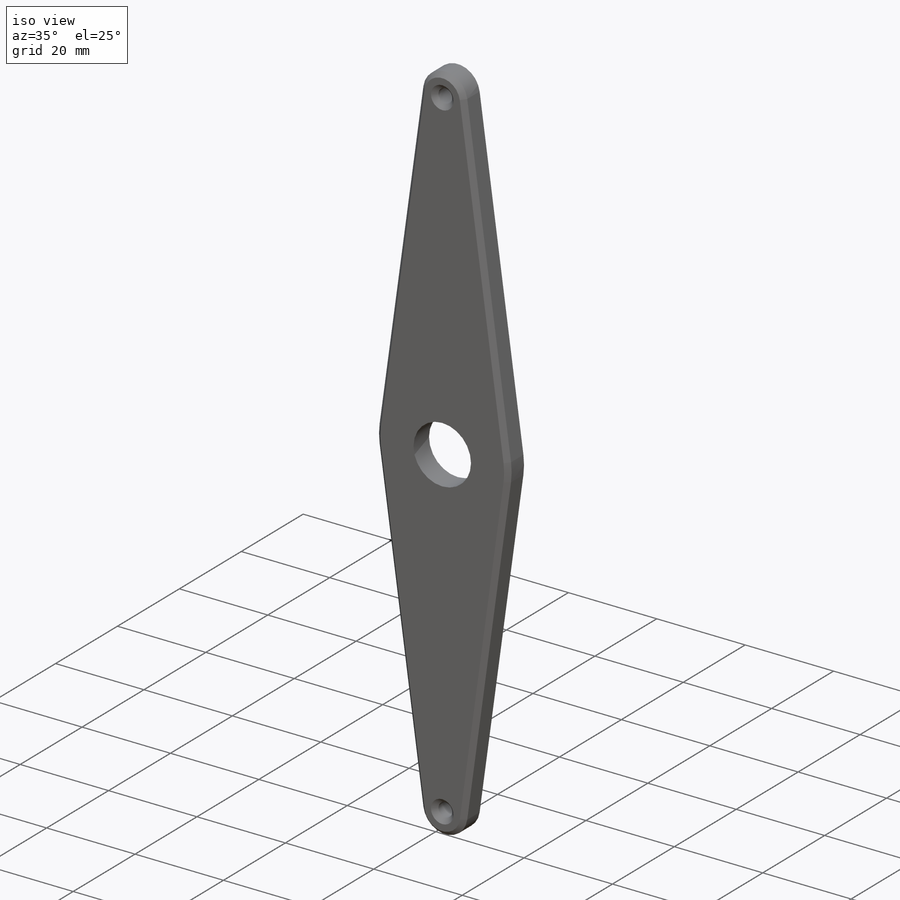
[diagram: iso view]
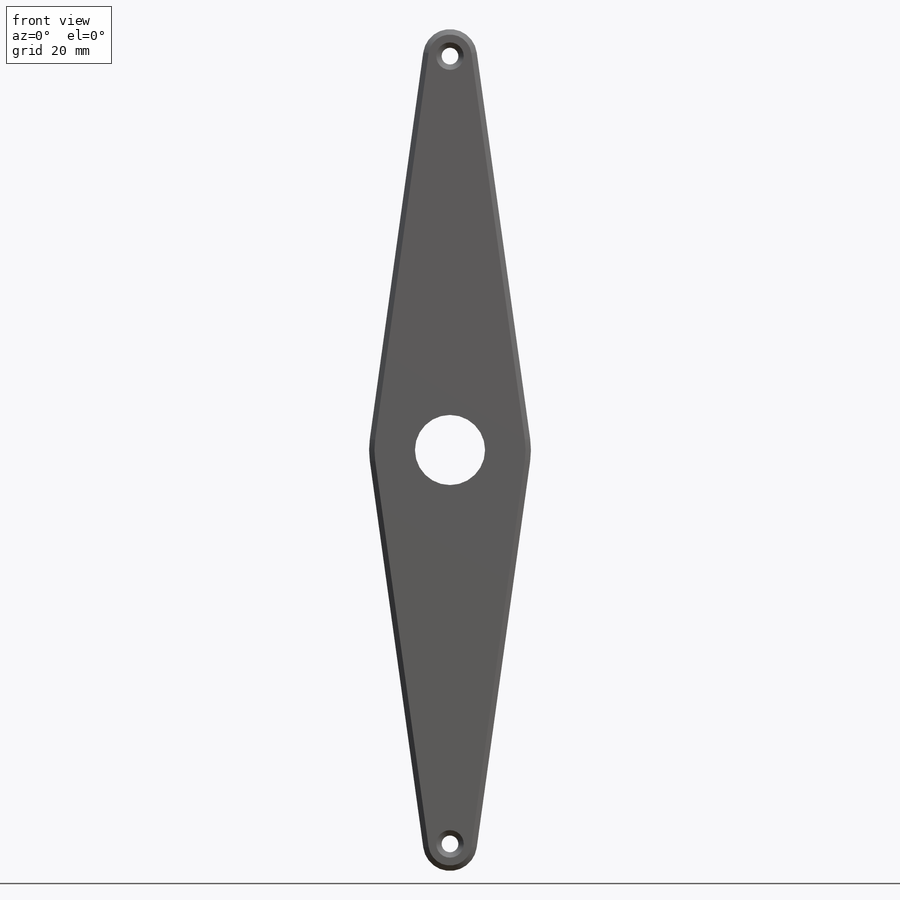
[diagram: front view]
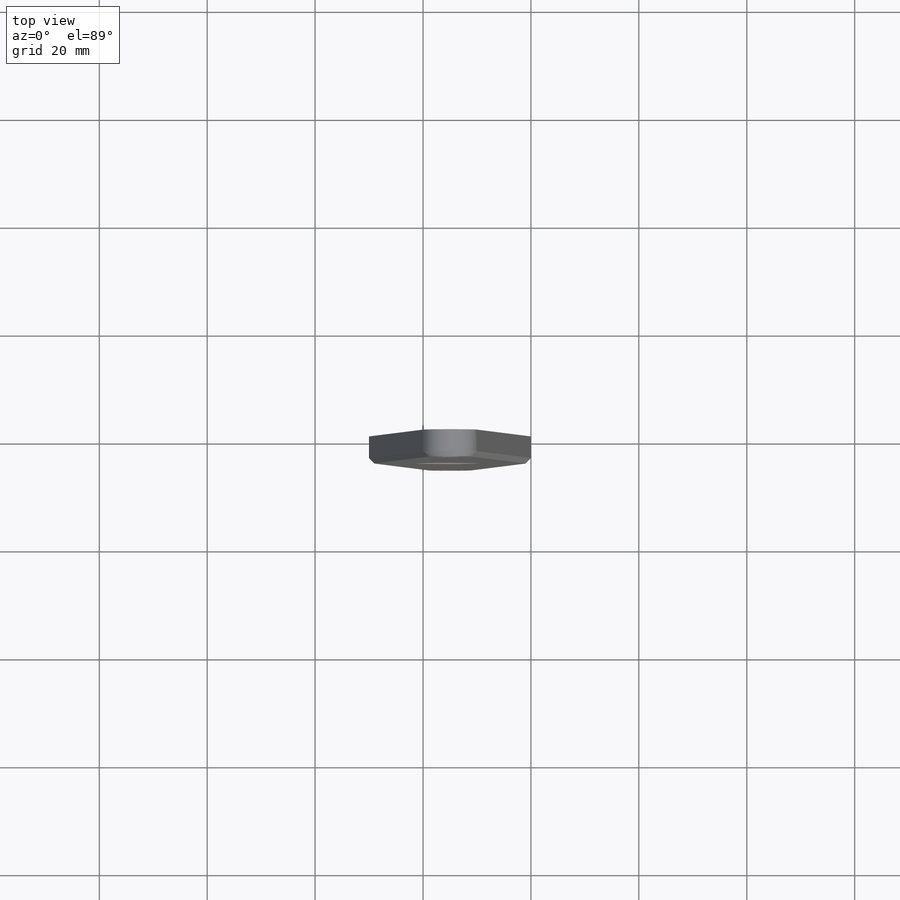
[diagram: top view]
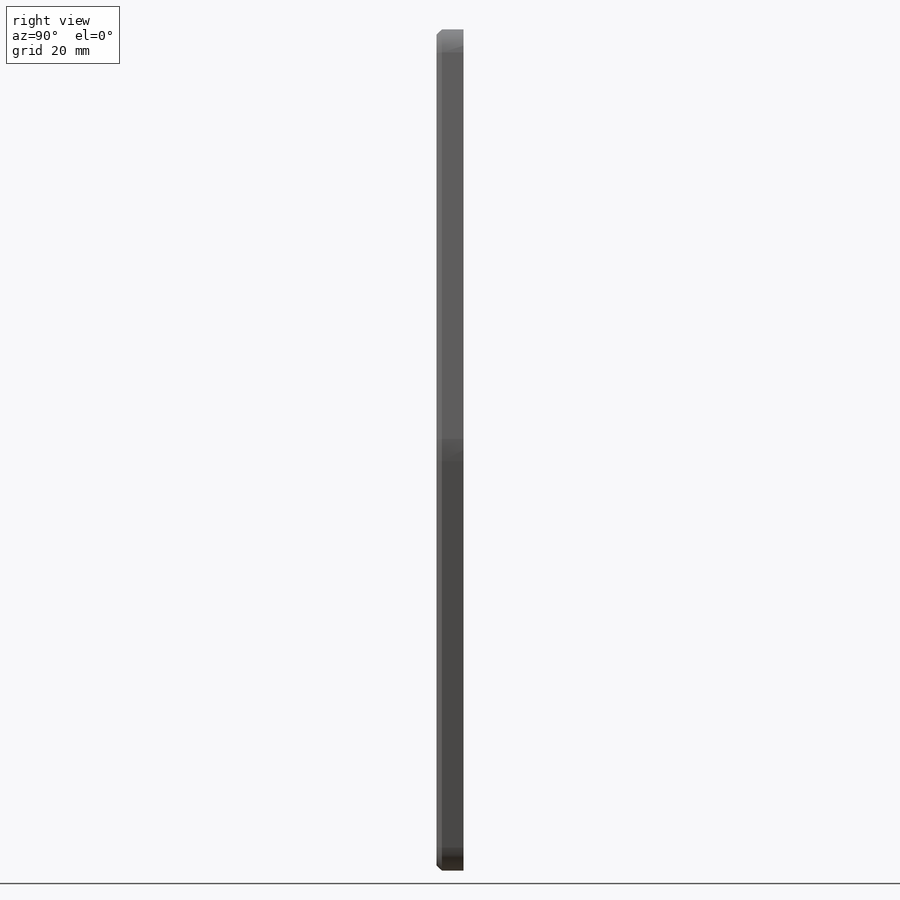
[diagram: right view]
SOLIDWORKS PART (.sldprt)
format: sldprt  version: not decoded by parser v0  size: 240,640 bytes
history: native  units: mm
features: sketch x6, cut_extrude x3, chamfer x2, material x1, extrude x1, plane x1, mirror x1 (+13 scaffold rows collapsed)
feature tree (28):
  scaffold x13  (default folders/planes/origin — collapsed)
  material  "Material <not specified>"
  sketch  "Sketch1"  dims[D2=30.0mm D4=10.0mm D3=5.0mm D5=~45.963149mm D1=0.0mm]
  extrude  "Boss-Extrude1"  Depth=5mm
  chamfer  "Chamfer1"  Distance=1mm Angle=45deg
  sketch  "Sketch6"  dims[c1.D1=5.0mm c1.D2=3.5mm c1.D4=2.0mm c2.D1=1.0mm c2.D2=~14.857111mm c2.D3=1.75mm c2.D4=~4.144382mm c2.D5=~2.121942mm]
  cut_extrude  "Cut-Extrude2"  [1 undecoded]
  chamfer  "Chamfer3"  Distance=1mm Angle=45deg
  sketch  "Sketch7"
  sketch  "Sketch8"  dims[D1=~15.770195mm]
  cut_extrude  "Axis3"  [1 undecoded]
  plane  "Plane3"
  mirror  "Mirror2"
  sketch  "Sketch9"  dims[D1=~10.636857mm]
  sketch  "Sketch10"  dims[D1=13.0mm]
  cut_extrude  "Cut-Extrude3"  [1 undecoded]
decode coverage: 8 of 13 modeling features carry decoded parameters
note: ~ marks probable driven/reference dimensions
note: 3 parameter values undecoded
summary: no parameter record found for 3 features
note: suppression state not decoded; provenance and decode notes live in map.json
